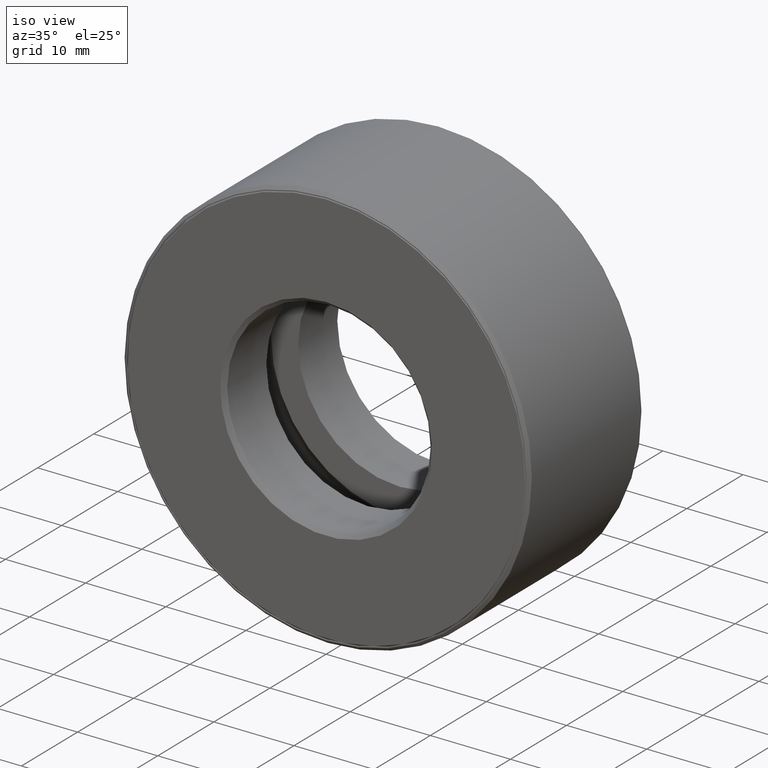
[diagram: clean part render]
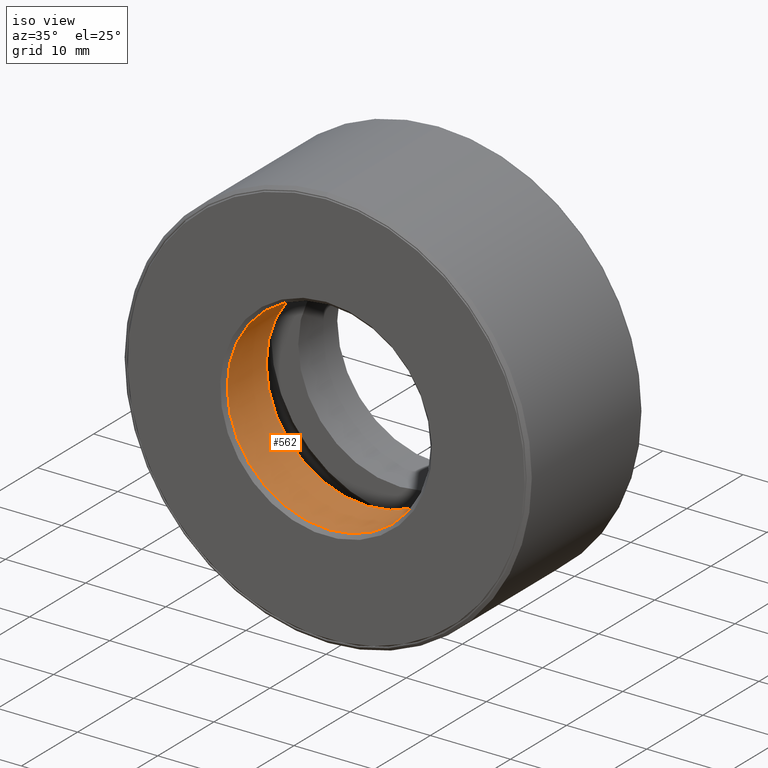
[diagram: same view with one face highlighted and labeled with its STEP entity id]
A machine part, iso view. The second image highlights one B-rep face of the part: STEP entity #562.
In plain terms, the highlighted cylindrical surface (bore or boss wall) has radius 12.7 mm, axis along (-0, 1, -0).
Its self-contained STEP definition (entity closure, byte-faithful):
#1 = DIRECTION ( 'NONE',  ( -0.0000000000000000000, 1.000000000000000000, -0.0000000000000000000 ) ) ;
#42 = CIRCLE ( 'NONE', #305, 0.5000000000000001100 ) ;
#47 = FACE_OUTER_BOUND ( 'NONE', #121, .T. ) ;
#73 = DIRECTION ( 'NONE',  ( 0.0000000000000000000, 0.0000000000000000000, 1.000000000000000000 ) ) ;
#80 = EDGE_LOOP ( 'NONE', ( #371 ) ) ;
#121 = EDGE_LOOP ( 'NONE', ( #546 ) ) ;
#139 = VERTEX_POINT ( 'NONE', #555 ) ;
#140 = FACE_OUTER_BOUND ( 'NONE', #80, .T. ) ;
#182 = CARTESIAN_POINT ( 'NONE',  ( 0.0000000000000000000, 0.2937500000000001200, 0.5000000000000001100 ) ) ;
#195 = CIRCLE ( 'NONE', #453, 0.5000000000000000000 ) ;
#201 = EDGE_CURVE ( 'NONE', #345, #345, #42, .T. ) ;
#211 = DIRECTION ( 'NONE',  ( 0.0000000000000000000, 0.0000000000000000000, 1.000000000000000000 ) ) ;
#258 = DIRECTION ( 'NONE',  ( -0.0000000000000000000, 1.000000000000000000, -0.0000000000000000000 ) ) ;
#305 = AXIS2_PLACEMENT_3D ( 'NONE', #469, #1, #337 ) ;
#337 = DIRECTION ( 'NONE',  ( 0.0000000000000000000, 0.0000000000000000000, 1.000000000000000000 ) ) ;
#345 = VERTEX_POINT ( 'NONE', #182 ) ;
#371 = ORIENTED_EDGE ( 'NONE', *, *, #201, .T. ) ;
#406 = DIRECTION ( 'NONE',  ( -0.0000000000000000000, 1.000000000000000000, -0.0000000000000000000 ) ) ;
#429 = EDGE_CURVE ( 'NONE', #139, #139, #195, .T. ) ;
#453 = AXIS2_PLACEMENT_3D ( 'NONE', #544, #258, #73 ) ;
#469 = CARTESIAN_POINT ( 'NONE',  ( 0.0000000000000000000, 0.2937500000000001200, 0.0000000000000000000 ) ) ;
#491 = CARTESIAN_POINT ( 'NONE',  ( 0.0000000000000000000, 0.0000000000000000000, 0.0000000000000000000 ) ) ;
#525 = CYLINDRICAL_SURFACE ( 'NONE', #585, 0.5000000000000000000 ) ;
#544 = CARTESIAN_POINT ( 'NONE',  ( 0.0000000000000000000, 0.02000000000000033300, 0.0000000000000000000 ) ) ;
#546 = ORIENTED_EDGE ( 'NONE', *, *, #429, .F. ) ;
#555 = CARTESIAN_POINT ( 'NONE',  ( 0.0000000000000000000, 0.02000000000000033300, 0.5000000000000000000 ) ) ;
#562 = ADVANCED_FACE ( 'NONE', ( #47, #140 ), #525, .F. ) ;
#585 = AXIS2_PLACEMENT_3D ( 'NONE', #491, #406, #211 ) ;